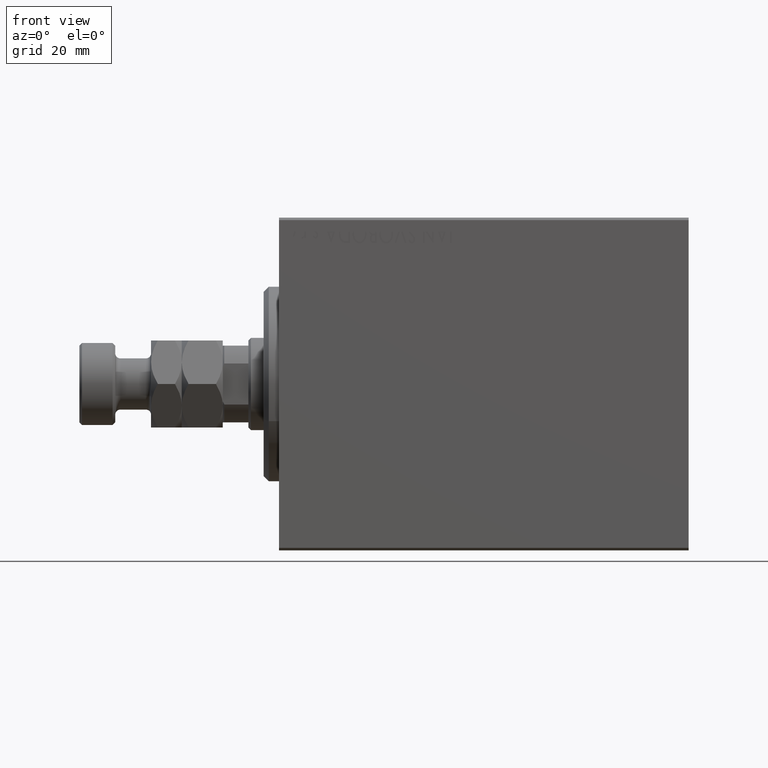
[diagram: clean part render]
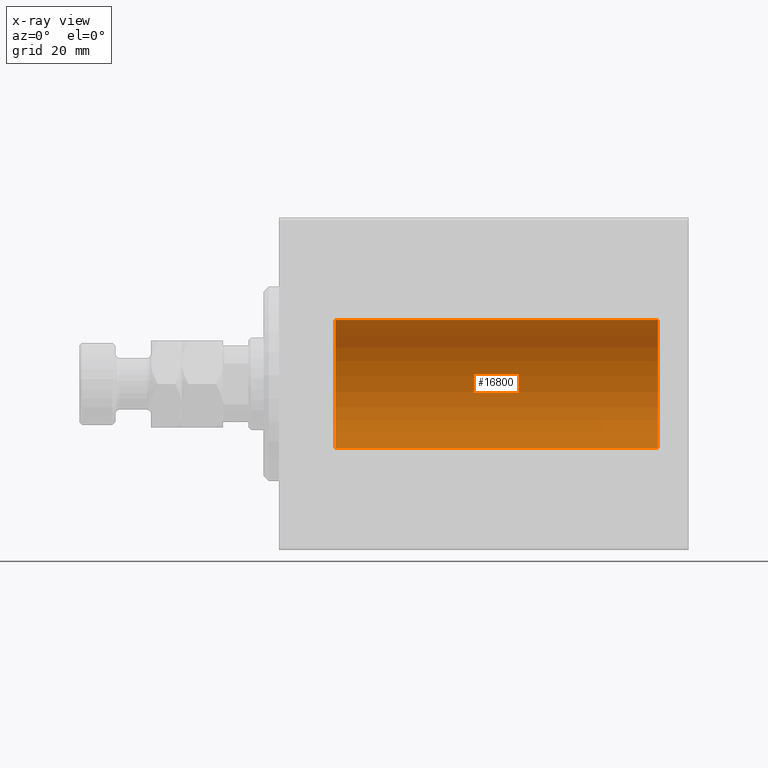
[diagram: x-ray — body ghosted, one internal face saturated and labeled with its STEP entity id]
A machine part, front view, then the same camera in x-ray: the body is ghosted and one INTERNAL B-rep face — a face not visible from any outside direction — is saturated and labeled: STEP entity #16800.
In plain terms, the highlighted cylindrical surface (partial cylindrical patch) has radius 12.5 mm, axis along (-1, -0, -0).
Its self-contained STEP definition (entity closure, byte-faithful):
#571 = EDGE_CURVE ( 'NONE', #12739, #2668, #36188, .T. ) ;
#776 = DIRECTION ( 'NONE',  ( 0.000000000000000000, 0.000000000000000000, 1.000000000000000000 ) ) ;
#2668 = VERTEX_POINT ( 'NONE', #25826 ) ;
#4130 = CARTESIAN_POINT ( 'NONE',  ( 74.00000000000000000, 0.000000000000000000, 12.50000000000000000 ) ) ;
#4902 = FACE_OUTER_BOUND ( 'NONE', #21411, .T. ) ;
#6934 = DIRECTION ( 'NONE',  ( -1.000000000000000000, 0.000000000000000000, 0.000000000000000000 ) ) ;
#7372 = EDGE_CURVE ( 'NONE', #20655, #12913, #31497, .T. ) ;
#8561 = DIRECTION ( 'NONE',  ( 0.000000000000000000, 0.000000000000000000, 1.000000000000000000 ) ) ;
#8645 = ORIENTED_EDGE ( 'NONE', *, *, #36844, .T. ) ;
#9428 = CARTESIAN_POINT ( 'NONE',  ( 74.00000000000000000, 0.000000000000000000, 12.50000000000000000 ) ) ;
#12739 = VERTEX_POINT ( 'NONE', #4130 ) ;
#12913 = VERTEX_POINT ( 'NONE', #23586 ) ;
#13044 = CARTESIAN_POINT ( 'NONE',  ( 10.99999999999999645, 0.000000000000000000, 12.50000000000000000 ) ) ;
#15306 = ORIENTED_EDGE ( 'NONE', *, *, #7372, .T. ) ;
#16411 = ORIENTED_EDGE ( 'NONE', *, *, #571, .F. ) ;
#16800 = ADVANCED_FACE ( 'NONE', ( #4902 ), #40492, .F. ) ;
#17917 = CARTESIAN_POINT ( 'NONE',  ( 10.99999999999999645, 0.000000000000000000, 0.000000000000000000 ) ) ;
#20655 = VERTEX_POINT ( 'NONE', #13044 ) ;
#21144 = EDGE_CURVE ( 'NONE', #2668, #12913, #45059, .T. ) ;
#21393 = DIRECTION ( 'NONE',  ( 0.000000000000000000, 0.000000000000000000, 1.000000000000000000 ) ) ;
#21411 = EDGE_LOOP ( 'NONE', ( #43088, #16411, #8645, #15306 ) ) ;
#23426 = DIRECTION ( 'NONE',  ( -1.000000000000000000, -0.000000000000000000, -0.000000000000000000 ) ) ;
#23586 = CARTESIAN_POINT ( 'NONE',  ( 10.99999999999999645, 1.530808498934191521E-15, -12.50000000000000000 ) ) ;
#24904 = VECTOR ( 'NONE', #23426, 1000.000000000000000 ) ;
#25826 = CARTESIAN_POINT ( 'NONE',  ( 74.00000000000000000, 1.530808498934191521E-15, -12.50000000000000000 ) ) ;
#26014 = DIRECTION ( 'NONE',  ( -1.000000000000000000, -0.000000000000000000, -0.000000000000000000 ) ) ;
#26865 = LINE ( 'NONE', #9428, #24904 ) ;
#27557 = CARTESIAN_POINT ( 'NONE',  ( 74.00000000000000000, 1.530808498934191521E-15, -12.50000000000000000 ) ) ;
#30074 = DIRECTION ( 'NONE',  ( -1.000000000000000000, 0.000000000000000000, 0.000000000000000000 ) ) ;
#30086 = AXIS2_PLACEMENT_3D ( 'NONE', #43496, #26014, #8561 ) ;
#31497 = CIRCLE ( 'NONE', #36650, 12.50000000000000000 ) ;
#31780 = AXIS2_PLACEMENT_3D ( 'NONE', #36763, #30074, #776 ) ;
#36188 = CIRCLE ( 'NONE', #31780, 12.50000000000000000 ) ;
#36650 = AXIS2_PLACEMENT_3D ( 'NONE', #17917, #6934, #21393 ) ;
#36763 = CARTESIAN_POINT ( 'NONE',  ( 74.00000000000000000, 0.000000000000000000, 0.000000000000000000 ) ) ;
#36844 = EDGE_CURVE ( 'NONE', #12739, #20655, #26865, .T. ) ;
#40492 = CYLINDRICAL_SURFACE ( 'NONE', #30086, 12.50000000000000000 ) ;
#41189 = VECTOR ( 'NONE', #42266, 1000.000000000000000 ) ;
#42266 = DIRECTION ( 'NONE',  ( -1.000000000000000000, -0.000000000000000000, -0.000000000000000000 ) ) ;
#43088 = ORIENTED_EDGE ( 'NONE', *, *, #21144, .F. ) ;
#43496 = CARTESIAN_POINT ( 'NONE',  ( 74.00000000000000000, 0.000000000000000000, 0.000000000000000000 ) ) ;
#45059 = LINE ( 'NONE', #27557, #41189 ) ;